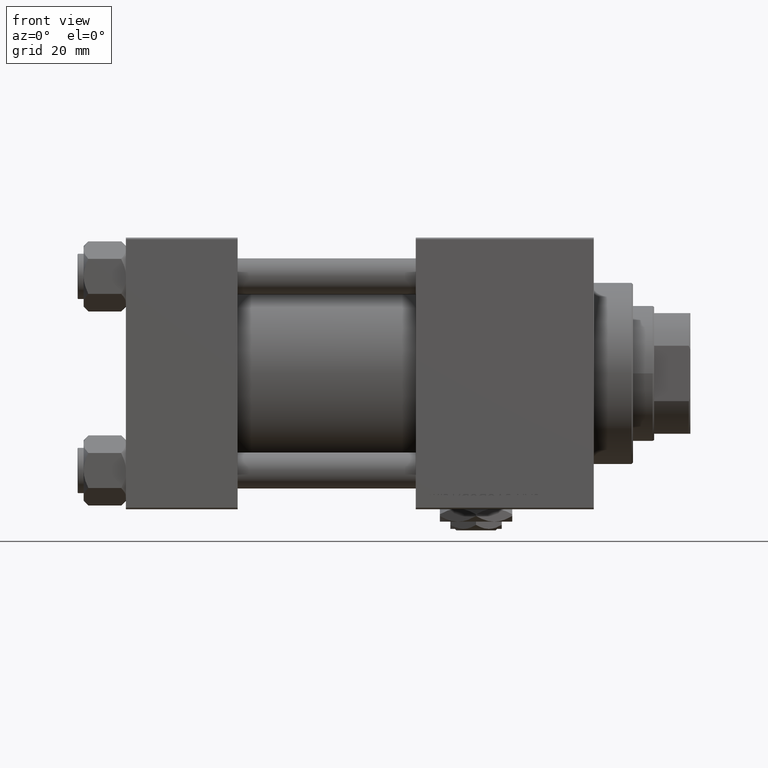
[diagram: clean part render]
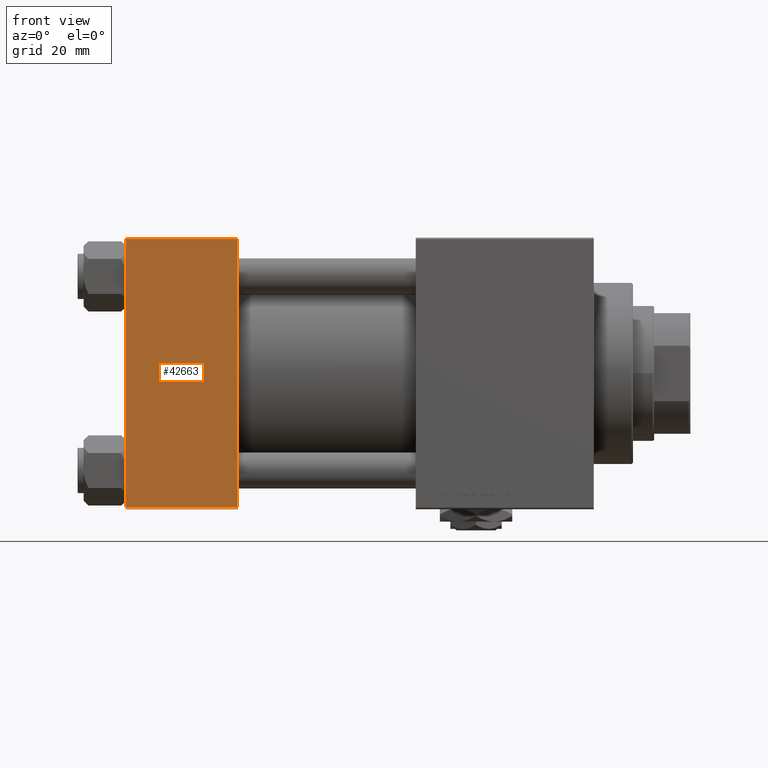
[diagram: same view with one face highlighted and labeled with its STEP entity id]
A machine part, front view. The second image highlights one B-rep face of the part: STEP entity #42663.
In plain terms, the highlighted planar face has unit normal (0, 1, 0).
Its self-contained STEP definition (entity closure, byte-faithful):
#1647 = LINE ( 'NONE', #6369, #16575 ) ;
#3410 = DIRECTION ( 'NONE',  ( 0.000000000000000000, -7.709882115452478166E-17, 1.000000000000000000 ) ) ;
#3649 = CARTESIAN_POINT ( 'NONE',  ( 0.000000000000000000, -45.00000000000000711, 44.49999999999997158 ) ) ;
#4029 = ORIENTED_EDGE ( 'NONE', *, *, #10439, .T. ) ;
#4549 = CARTESIAN_POINT ( 'NONE',  ( 0.000000000000000000, -45.00000000000000000, -44.49999999999995737 ) ) ;
#6369 = CARTESIAN_POINT ( 'NONE',  ( 37.00000000000000000, -45.00000000000000711, 44.49999999999997158 ) ) ;
#7264 = VERTEX_POINT ( 'NONE', #3649 ) ;
#10439 = EDGE_CURVE ( 'NONE', #29321, #7264, #1647, .T. ) ;
#14425 = VERTEX_POINT ( 'NONE', #4549 ) ;
#15131 = LINE ( 'NONE', #15392, #48593 ) ;
#15223 = PLANE ( 'NONE',  #16521 ) ;
#15392 = CARTESIAN_POINT ( 'NONE',  ( 0.000000000000000000, -45.00000000000000711, 45.00000000000000000 ) ) ;
#15788 = DIRECTION ( 'NONE',  ( 1.000000000000000000, 0.000000000000000000, 0.000000000000000000 ) ) ;
#15813 = VERTEX_POINT ( 'NONE', #45585 ) ;
#16521 = AXIS2_PLACEMENT_3D ( 'NONE', #22298, #34362, #3410 ) ;
#16575 = VECTOR ( 'NONE', #18428, 1000.000000000000000 ) ;
#17738 = EDGE_CURVE ( 'NONE', #7264, #14425, #15131, .T. ) ;
#18428 = DIRECTION ( 'NONE',  ( -1.000000000000000000, 0.000000000000000000, 0.000000000000000000 ) ) ;
#19253 = LINE ( 'NONE', #38652, #23362 ) ;
#19806 = CARTESIAN_POINT ( 'NONE',  ( 37.00000000000000000, -45.00000000000000711, 44.49999999999997158 ) ) ;
#22298 = CARTESIAN_POINT ( 'NONE',  ( 37.00000000000000000, -45.00000000000000711, 45.00000000000000000 ) ) ;
#23362 = VECTOR ( 'NONE', #35517, 1000.000000000000000 ) ;
#23839 = EDGE_LOOP ( 'NONE', ( #37920, #49397, #40874, #4029 ) ) ;
#26415 = DIRECTION ( 'NONE',  ( 0.000000000000000000, 7.709882115452476934E-17, -1.000000000000000000 ) ) ;
#26502 = FACE_OUTER_BOUND ( 'NONE', #23839, .T. ) ;
#29321 = VERTEX_POINT ( 'NONE', #19806 ) ;
#32063 = LINE ( 'NONE', #43843, #43425 ) ;
#34362 = DIRECTION ( 'NONE',  ( -0.000000000000000000, 1.000000000000000000, 7.709882115452478166E-17 ) ) ;
#35517 = DIRECTION ( 'NONE',  ( 0.000000000000000000, 7.709882115452476934E-17, -1.000000000000000000 ) ) ;
#37920 = ORIENTED_EDGE ( 'NONE', *, *, #17738, .T. ) ;
#38652 = CARTESIAN_POINT ( 'NONE',  ( 37.00000000000000000, -45.00000000000000711, 45.00000000000000000 ) ) ;
#40874 = ORIENTED_EDGE ( 'NONE', *, *, #48082, .F. ) ;
#42663 = ADVANCED_FACE ( 'NONE', ( #26502 ), #15223, .F. ) ;
#43425 = VECTOR ( 'NONE', #15788, 1000.000000000000000 ) ;
#43843 = CARTESIAN_POINT ( 'NONE',  ( 37.00000000000000000, -45.00000000000000000, -44.49999999999998579 ) ) ;
#45585 = CARTESIAN_POINT ( 'NONE',  ( 37.00000000000000000, -45.00000000000000000, -44.49999999999995737 ) ) ;
#45770 = EDGE_CURVE ( 'NONE', #14425, #15813, #32063, .T. ) ;
#48082 = EDGE_CURVE ( 'NONE', #29321, #15813, #19253, .T. ) ;
#48593 = VECTOR ( 'NONE', #26415, 1000.000000000000000 ) ;
#49397 = ORIENTED_EDGE ( 'NONE', *, *, #45770, .T. ) ;